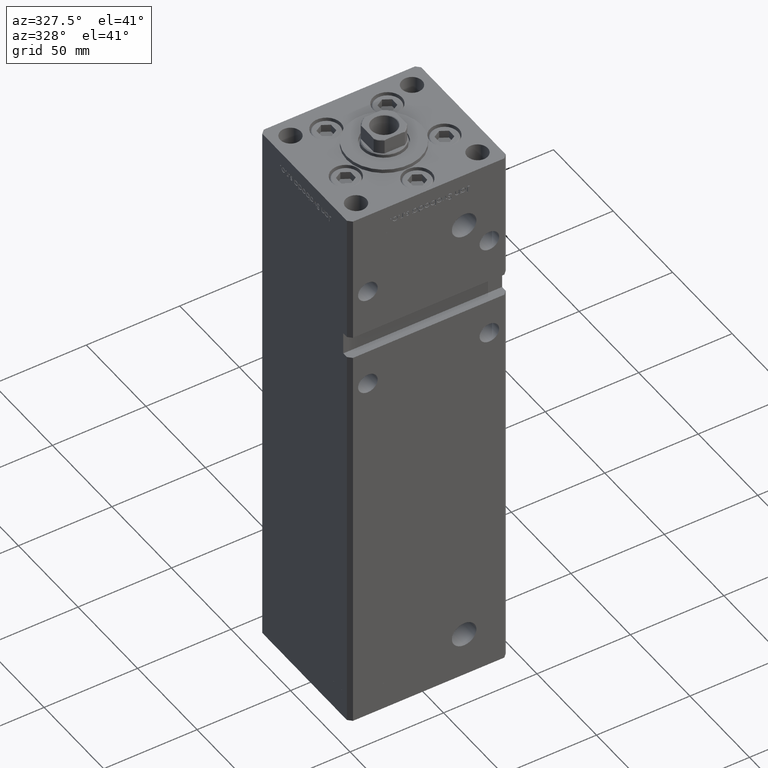
[diagram: clean part render]
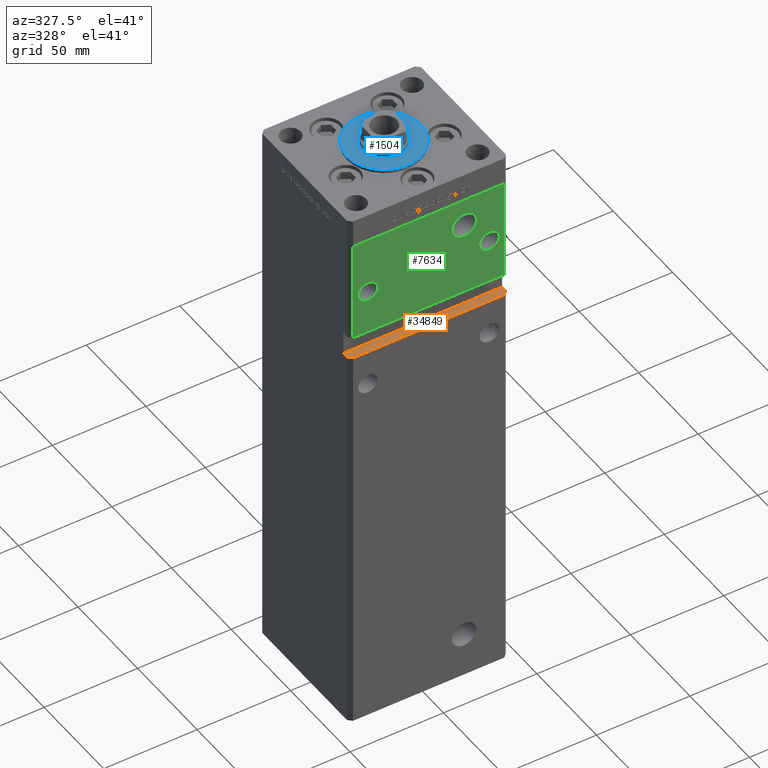
[diagram: same view with three faces highlighted in distinct colors, each labeled with its STEP entity id]
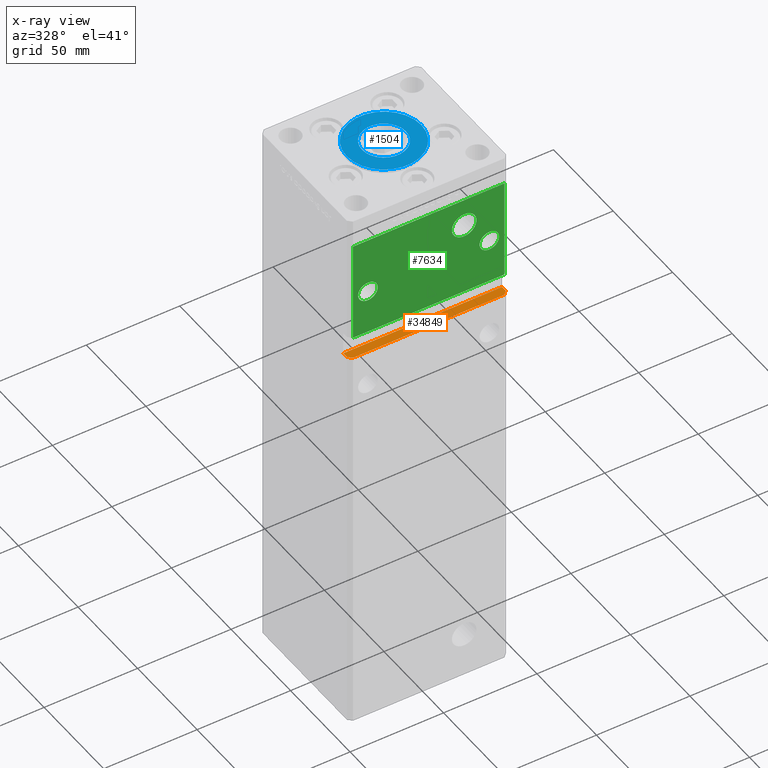
[diagram: x-ray of the same camera — body ghosted, the three highlighted faces saturated]
A machine part, auxiliary view with three faces highlighted in distinct colors.
The next image is the same camera in x-ray (body ghosted, the three faces saturated) — at least one of them is partly hidden behind the body in this view.
Their STEP definitions:

[orange] entity #34849 — the highlighted planar face has unit normal (0, 0, -1).
#926 = CARTESIAN_POINT ( 'NONE',  ( 42.49999999999998579, -35.50000000000000711, 202.0000000000000000 ) ) ;
#1380 = DIRECTION ( 'NONE',  ( -0.000000000000000000, -1.000000000000000000, -0.000000000000000000 ) ) ;
#3880 = ORIENTED_EDGE ( 'NONE', *, *, #21562, .F. ) ;
#4141 = EDGE_LOOP ( 'NONE', ( #8600, #23711, #33352, #3880, #32587, #21887 ) ) ;
#4635 = CARTESIAN_POINT ( 'NONE',  ( -42.49999999999998579, -35.49999999999996447, 202.0000000000000000 ) ) ;
#4732 = LINE ( 'NONE', #24419, #22823 ) ;
#5182 = VERTEX_POINT ( 'NONE', #27629 ) ;
#8208 = EDGE_CURVE ( 'NONE', #19357, #16774, #28637, .T. ) ;
#8600 = ORIENTED_EDGE ( 'NONE', *, *, #34362, .T. ) ;
#9714 = CARTESIAN_POINT ( 'NONE',  ( 42.49999999999998579, -32.50000000000000711, 202.0000000000000000 ) ) ;
#12212 = VECTOR ( 'NONE', #51052, 1000.000000000000114 ) ;
#12307 = DIRECTION ( 'NONE',  ( -0.000000000000000000, -1.000000000000000000, -0.000000000000000000 ) ) ;
#12737 = DIRECTION ( 'NONE',  ( 1.000000000000000000, 0.000000000000000000, 0.000000000000000000 ) ) ;
#15800 = FACE_OUTER_BOUND ( 'NONE', #4141, .T. ) ;
#16774 = VERTEX_POINT ( 'NONE', #4635 ) ;
#18238 = VECTOR ( 'NONE', #32659, 1000.000000000000114 ) ;
#19357 = VERTEX_POINT ( 'NONE', #45460 ) ;
#19573 = CARTESIAN_POINT ( 'NONE',  ( -42.49999999999998579, -32.50000000000000711, 202.0000000000000000 ) ) ;
#20811 = CARTESIAN_POINT ( 'NONE',  ( -42.49999999999998579, -35.50000000000000711, 202.0000000000000000 ) ) ;
#21153 = DIRECTION ( 'NONE',  ( 1.000000000000000000, 0.000000000000000000, 0.000000000000000000 ) ) ;
#21562 = EDGE_CURVE ( 'NONE', #48783, #5182, #4732, .T. ) ;
#21887 = ORIENTED_EDGE ( 'NONE', *, *, #8208, .F. ) ;
#22069 = CARTESIAN_POINT ( 'NONE',  ( -42.49999999999998579, -32.50000000000000711, 202.0000000000000000 ) ) ;
#22287 = LINE ( 'NONE', #22825, #12212 ) ;
#22823 = VECTOR ( 'NONE', #21153, 1000.000000000000000 ) ;
#22825 = CARTESIAN_POINT ( 'NONE',  ( 42.49999999999998579, -35.50000000000000711, 202.0000000000000000 ) ) ;
#23711 = ORIENTED_EDGE ( 'NONE', *, *, #52981, .T. ) ;
#23892 = PLANE ( 'NONE',  #47112 ) ;
#24419 = CARTESIAN_POINT ( 'NONE',  ( -42.49999999999998579, -32.50000000000000711, 202.0000000000000000 ) ) ;
#24712 = LINE ( 'NONE', #25509, #39266 ) ;
#24960 = EDGE_CURVE ( 'NONE', #48783, #16774, #24712, .T. ) ;
#25509 = CARTESIAN_POINT ( 'NONE',  ( -42.49999999999998579, -32.50000000000000711, 202.0000000000000000 ) ) ;
#26408 = EDGE_CURVE ( 'NONE', #5182, #48309, #46329, .T. ) ;
#27629 = CARTESIAN_POINT ( 'NONE',  ( 42.49999999999998579, -32.50000000000000000, 202.0000000000000000 ) ) ;
#28637 = LINE ( 'NONE', #20811, #18238 ) ;
#32587 = ORIENTED_EDGE ( 'NONE', *, *, #24960, .T. ) ;
#32659 = DIRECTION ( 'NONE',  ( -0.7071067811865474617, 0.7071067811865474617, 0.000000000000000000 ) ) ;
#33209 = LINE ( 'NONE', #38046, #49655 ) ;
#33352 = ORIENTED_EDGE ( 'NONE', *, *, #26408, .F. ) ;
#34362 = EDGE_CURVE ( 'NONE', #19357, #51643, #33209, .T. ) ;
#34849 = ADVANCED_FACE ( 'NONE', ( #15800 ), #23892, .F. ) ;
#36522 = DIRECTION ( 'NONE',  ( -1.000000000000000000, 0.000000000000000000, -0.000000000000000000 ) ) ;
#38046 = CARTESIAN_POINT ( 'NONE',  ( -42.49999999999998579, -37.50000000000000711, 202.0000000000000000 ) ) ;
#39266 = VECTOR ( 'NONE', #12307, 1000.000000000000000 ) ;
#40129 = VECTOR ( 'NONE', #1380, 1000.000000000000000 ) ;
#45393 = DIRECTION ( 'NONE',  ( 0.000000000000000000, 0.000000000000000000, -1.000000000000000000 ) ) ;
#45460 = CARTESIAN_POINT ( 'NONE',  ( -40.49999999999998579, -37.50000000000000711, 202.0000000000000000 ) ) ;
#46329 = LINE ( 'NONE', #9714, #40129 ) ;
#47112 = AXIS2_PLACEMENT_3D ( 'NONE', #19573, #45393, #36522 ) ;
#48309 = VERTEX_POINT ( 'NONE', #926 ) ;
#48783 = VERTEX_POINT ( 'NONE', #22069 ) ;
#49655 = VECTOR ( 'NONE', #12737, 1000.000000000000000 ) ;
#50607 = CARTESIAN_POINT ( 'NONE',  ( 40.49999999999998579, -37.50000000000000711, 202.0000000000000000 ) ) ;
#51052 = DIRECTION ( 'NONE',  ( 0.7071067811865474617, 0.7071067811865474617, 0.000000000000000000 ) ) ;
#51643 = VERTEX_POINT ( 'NONE', #50607 ) ;
#52981 = EDGE_CURVE ( 'NONE', #51643, #48309, #22287, .T. ) ;

[blue] entity #1504 — the highlighted planar face has unit normal (0, 0, 1).
#1504 = ADVANCED_FACE ( 'NONE', ( #4566, #12899 ), #24522, .T. ) ;
#4202 = CARTESIAN_POINT ( 'NONE',  ( 20.00000000000000000, -4.489600305612522259E-15, 2.000000000000000000 ) ) ;
#4346 = ORIENTED_EDGE ( 'NONE', *, *, #9269, .T. ) ;
#4566 = FACE_BOUND ( 'NONE', #24607, .T. ) ;
#5576 = CIRCLE ( 'NONE', #17611, 20.00000000000000000 ) ;
#6492 = CARTESIAN_POINT ( 'NONE',  ( -20.00000000000000000, -6.938893903907228378E-15, 2.000000000000000000 ) ) ;
#8595 = DIRECTION ( 'NONE',  ( 1.000000000000000000, 0.000000000000000000, -0.000000000000000000 ) ) ;
#8932 = DIRECTION ( 'NONE',  ( 0.000000000000000000, 0.000000000000000000, 1.000000000000000000 ) ) ;
#9122 = DIRECTION ( 'NONE',  ( 0.000000000000000000, 0.000000000000000000, 1.000000000000000000 ) ) ;
#9269 = EDGE_CURVE ( 'NONE', #52491, #34013, #52626, .T. ) ;
#10114 = EDGE_CURVE ( 'NONE', #46249, #24942, #26014, .T. ) ;
#12433 = DIRECTION ( 'NONE',  ( 1.000000000000000000, 0.000000000000000000, 0.000000000000000000 ) ) ;
#12899 = FACE_OUTER_BOUND ( 'NONE', #18451, .T. ) ;
#13501 = DIRECTION ( 'NONE',  ( 1.000000000000000000, 0.000000000000000000, 0.000000000000000000 ) ) ;
#16476 = DIRECTION ( 'NONE',  ( 0.000000000000000000, 0.000000000000000000, 1.000000000000000000 ) ) ;
#17611 = AXIS2_PLACEMENT_3D ( 'NONE', #19184, #23497, #51995 ) ;
#18451 = EDGE_LOOP ( 'NONE', ( #4346, #35917 ) ) ;
#19184 = CARTESIAN_POINT ( 'NONE',  ( 0.000000000000000000, -6.938893903907228378E-15, 2.000000000000000000 ) ) ;
#21986 = EDGE_CURVE ( 'NONE', #34013, #52491, #5576, .T. ) ;
#23350 = CIRCLE ( 'NONE', #30221, 11.75000000000000178 ) ;
#23497 = DIRECTION ( 'NONE',  ( 0.000000000000000000, 0.000000000000000000, 1.000000000000000000 ) ) ;
#24522 = PLANE ( 'NONE',  #47280 ) ;
#24607 = EDGE_LOOP ( 'NONE', ( #42088, #29290 ) ) ;
#24843 = CARTESIAN_POINT ( 'NONE',  ( 0.000000000000000000, -6.938893903907228378E-15, 2.000000000000000000 ) ) ;
#24942 = VERTEX_POINT ( 'NONE', #25250 ) ;
#25250 = CARTESIAN_POINT ( 'NONE',  ( -11.75000000000000178, -5.499933914909088809E-15, 2.000000000000000000 ) ) ;
#26014 = CIRCLE ( 'NONE', #46622, 11.75000000000000178 ) ;
#26922 = CARTESIAN_POINT ( 'NONE',  ( 11.75000000000000178, -6.938893903907228378E-15, 2.000000000000000000 ) ) ;
#28587 = AXIS2_PLACEMENT_3D ( 'NONE', #24843, #16476, #12433 ) ;
#29290 = ORIENTED_EDGE ( 'NONE', *, *, #50230, .F. ) ;
#30221 = AXIS2_PLACEMENT_3D ( 'NONE', #43765, #42962, #31127 ) ;
#31127 = DIRECTION ( 'NONE',  ( 1.000000000000000000, 0.000000000000000000, 0.000000000000000000 ) ) ;
#34013 = VERTEX_POINT ( 'NONE', #4202 ) ;
#35917 = ORIENTED_EDGE ( 'NONE', *, *, #21986, .T. ) ;
#37411 = CARTESIAN_POINT ( 'NONE',  ( 0.000000000000000000, -6.938893903907228378E-15, 2.000000000000000000 ) ) ;
#42051 = CARTESIAN_POINT ( 'NONE',  ( 0.000000000000000000, -6.938893903907228378E-15, 2.000000000000000000 ) ) ;
#42088 = ORIENTED_EDGE ( 'NONE', *, *, #10114, .F. ) ;
#42962 = DIRECTION ( 'NONE',  ( 0.000000000000000000, 0.000000000000000000, 1.000000000000000000 ) ) ;
#43765 = CARTESIAN_POINT ( 'NONE',  ( 0.000000000000000000, -6.938893903907228378E-15, 2.000000000000000000 ) ) ;
#46249 = VERTEX_POINT ( 'NONE', #26922 ) ;
#46622 = AXIS2_PLACEMENT_3D ( 'NONE', #42051, #8932, #13501 ) ;
#47280 = AXIS2_PLACEMENT_3D ( 'NONE', #37411, #9122, #8595 ) ;
#50230 = EDGE_CURVE ( 'NONE', #24942, #46249, #23350, .T. ) ;
#51995 = DIRECTION ( 'NONE',  ( 1.000000000000000000, 0.000000000000000000, 0.000000000000000000 ) ) ;
#52491 = VERTEX_POINT ( 'NONE', #6492 ) ;
#52626 = CIRCLE ( 'NONE', #28587, 20.00000000000000000 ) ;

[green] entity #7634 — the highlighted planar face has unit normal (0, 1, 0).
#1191 = CIRCLE ( 'NONE', #18926, 5.250000000000004441 ) ;
#1240 = AXIS2_PLACEMENT_3D ( 'NONE', #26567, #30597, #50476 ) ;
#1566 = CARTESIAN_POINT ( 'NONE',  ( 18.99999999999995737, -37.50000000000000711, 253.5000000000000000 ) ) ;
#2964 = CARTESIAN_POINT ( 'NONE',  ( 40.49999999999998579, -37.50000000000000711, 268.5000000000000000 ) ) ;
#3504 = CARTESIAN_POINT ( 'NONE',  ( -32.50000000000000000, -37.50000000000000711, 232.7500000000000000 ) ) ;
#3596 = ORIENTED_EDGE ( 'NONE', *, *, #48210, .F. ) ;
#3865 = EDGE_CURVE ( 'NONE', #14581, #33739, #11034, .T. ) ;
#4241 = LINE ( 'NONE', #40345, #5269 ) ;
#4302 = DIRECTION ( 'NONE',  ( 0.000000000000000000, -0.000000000000000000, 1.000000000000000000 ) ) ;
#5108 = CARTESIAN_POINT ( 'NONE',  ( -40.49999999999998579, -37.50000000000000711, 214.0000000000000284 ) ) ;
#5269 = VECTOR ( 'NONE', #28759, 1000.000000000000000 ) ;
#5746 = VERTEX_POINT ( 'NONE', #28547 ) ;
#6514 = EDGE_CURVE ( 'NONE', #30380, #25630, #41412, .T. ) ;
#7129 = CIRCLE ( 'NONE', #14004, 5.250000000000004441 ) ;
#7367 = DIRECTION ( 'NONE',  ( 0.000000000000000000, 1.000000000000000000, 0.000000000000000000 ) ) ;
#7540 = FACE_OUTER_BOUND ( 'NONE', #7983, .T. ) ;
#7634 = ADVANCED_FACE ( 'NONE', ( #15632, #52992, #7540, #28291 ), #36081, .F. ) ;
#7948 = LINE ( 'NONE', #24393, #18225 ) ;
#7983 = EDGE_LOOP ( 'NONE', ( #12686, #25911, #19194, #3596 ) ) ;
#9342 = DIRECTION ( 'NONE',  ( 0.000000000000000000, 0.000000000000000000, 1.000000000000000000 ) ) ;
#9425 = EDGE_LOOP ( 'NONE', ( #25531, #16035 ) ) ;
#10599 = DIRECTION ( 'NONE',  ( -0.000000000000000000, 1.000000000000000000, -0.000000000000000000 ) ) ;
#11034 = LINE ( 'NONE', #2964, #16386 ) ;
#11304 = AXIS2_PLACEMENT_3D ( 'NONE', #11579, #32059, #4302 ) ;
#11507 = EDGE_CURVE ( 'NONE', #18633, #18303, #7129, .T. ) ;
#11579 = CARTESIAN_POINT ( 'NONE',  ( -40.49999999999998579, -37.50000000000000711, 268.5000000000000000 ) ) ;
#12686 = ORIENTED_EDGE ( 'NONE', *, *, #19758, .T. ) ;
#13388 = CARTESIAN_POINT ( 'NONE',  ( 32.50000000000000000, -37.50000000000000711, 238.0000000000000284 ) ) ;
#13684 = CIRCLE ( 'NONE', #47242, 6.580000000000002736 ) ;
#14004 = AXIS2_PLACEMENT_3D ( 'NONE', #13388, #37364, #9342 ) ;
#14566 = ORIENTED_EDGE ( 'NONE', *, *, #14820, .T. ) ;
#14581 = VERTEX_POINT ( 'NONE', #50946 ) ;
#14820 = EDGE_CURVE ( 'NONE', #26416, #26697, #42491, .T. ) ;
#14929 = DIRECTION ( 'NONE',  ( -0.000000000000000000, -0.000000000000000000, -1.000000000000000000 ) ) ;
#15032 = ORIENTED_EDGE ( 'NONE', *, *, #42573, .T. ) ;
#15408 = EDGE_CURVE ( 'NONE', #18303, #18633, #17579, .T. ) ;
#15632 = FACE_BOUND ( 'NONE', #21216, .T. ) ;
#15793 = CARTESIAN_POINT ( 'NONE',  ( 32.50000000000000000, -37.50000000000000711, 232.7500000000000000 ) ) ;
#15819 = CARTESIAN_POINT ( 'NONE',  ( 18.99999999999995737, -37.50000000000000711, 246.9199999999999875 ) ) ;
#16035 = ORIENTED_EDGE ( 'NONE', *, *, #6514, .T. ) ;
#16386 = VECTOR ( 'NONE', #28001, 1000.000000000000000 ) ;
#17270 = CARTESIAN_POINT ( 'NONE',  ( -32.50000000000000000, -37.50000000000000711, 243.2500000000000284 ) ) ;
#17579 = CIRCLE ( 'NONE', #1240, 5.250000000000004441 ) ;
#18225 = VECTOR ( 'NONE', #40812, 1000.000000000000000 ) ;
#18303 = VERTEX_POINT ( 'NONE', #24480 ) ;
#18633 = VERTEX_POINT ( 'NONE', #15793 ) ;
#18926 = AXIS2_PLACEMENT_3D ( 'NONE', #28644, #7367, #49331 ) ;
#19126 = DIRECTION ( 'NONE',  ( 0.000000000000000000, 0.000000000000000000, 1.000000000000000000 ) ) ;
#19194 = ORIENTED_EDGE ( 'NONE', *, *, #3865, .F. ) ;
#19758 = EDGE_CURVE ( 'NONE', #5746, #46955, #28459, .T. ) ;
#21216 = EDGE_LOOP ( 'NONE', ( #45367, #45479 ) ) ;
#22039 = DIRECTION ( 'NONE',  ( -0.000000000000000000, 1.000000000000000000, -0.000000000000000000 ) ) ;
#24393 = CARTESIAN_POINT ( 'NONE',  ( -40.49999999999998579, -37.50000000000000711, 268.5000000000000000 ) ) ;
#24480 = CARTESIAN_POINT ( 'NONE',  ( 32.50000000000000000, -37.50000000000000711, 243.2500000000000284 ) ) ;
#25531 = ORIENTED_EDGE ( 'NONE', *, *, #40641, .T. ) ;
#25630 = VERTEX_POINT ( 'NONE', #15819 ) ;
#25911 = ORIENTED_EDGE ( 'NONE', *, *, #46370, .F. ) ;
#26416 = VERTEX_POINT ( 'NONE', #17270 ) ;
#26567 = CARTESIAN_POINT ( 'NONE',  ( 32.50000000000000000, -37.50000000000000711, 238.0000000000000284 ) ) ;
#26697 = VERTEX_POINT ( 'NONE', #3504 ) ;
#27224 = DIRECTION ( 'NONE',  ( 0.000000000000000000, 1.000000000000000000, 0.000000000000000000 ) ) ;
#28001 = DIRECTION ( 'NONE',  ( -0.000000000000000000, -0.000000000000000000, -1.000000000000000000 ) ) ;
#28291 = FACE_BOUND ( 'NONE', #9425, .T. ) ;
#28459 = LINE ( 'NONE', #44866, #47658 ) ;
#28547 = CARTESIAN_POINT ( 'NONE',  ( -40.49999999999998579, -37.50000000000000711, 268.5000000000000000 ) ) ;
#28644 = CARTESIAN_POINT ( 'NONE',  ( -32.50000000000000000, -37.50000000000000711, 238.0000000000000284 ) ) ;
#28759 = DIRECTION ( 'NONE',  ( -1.000000000000000000, -0.000000000000000000, -0.000000000000000000 ) ) ;
#30380 = VERTEX_POINT ( 'NONE', #50418 ) ;
#30597 = DIRECTION ( 'NONE',  ( 0.000000000000000000, 1.000000000000000000, 0.000000000000000000 ) ) ;
#32059 = DIRECTION ( 'NONE',  ( 0.000000000000000000, 1.000000000000000000, 0.000000000000000000 ) ) ;
#32900 = EDGE_LOOP ( 'NONE', ( #14566, #15032 ) ) ;
#33739 = VERTEX_POINT ( 'NONE', #49718 ) ;
#34842 = CARTESIAN_POINT ( 'NONE',  ( 18.99999999999995737, -37.50000000000000711, 253.5000000000000000 ) ) ;
#36081 = PLANE ( 'NONE',  #11304 ) ;
#37364 = DIRECTION ( 'NONE',  ( 0.000000000000000000, 1.000000000000000000, 0.000000000000000000 ) ) ;
#38519 = CARTESIAN_POINT ( 'NONE',  ( -32.50000000000000000, -37.50000000000000711, 238.0000000000000284 ) ) ;
#40345 = CARTESIAN_POINT ( 'NONE',  ( -42.49999999999998579, -37.50000000000000711, 214.0000000000000284 ) ) ;
#40641 = EDGE_CURVE ( 'NONE', #25630, #30380, #13684, .T. ) ;
#40812 = DIRECTION ( 'NONE',  ( 1.000000000000000000, 0.000000000000000000, 0.000000000000000000 ) ) ;
#41412 = CIRCLE ( 'NONE', #49943, 6.580000000000002736 ) ;
#42491 = CIRCLE ( 'NONE', #50211, 5.250000000000004441 ) ;
#42573 = EDGE_CURVE ( 'NONE', #26697, #26416, #1191, .T. ) ;
#44866 = CARTESIAN_POINT ( 'NONE',  ( -40.49999999999998579, -37.50000000000000711, 268.5000000000000000 ) ) ;
#45367 = ORIENTED_EDGE ( 'NONE', *, *, #15408, .T. ) ;
#45479 = ORIENTED_EDGE ( 'NONE', *, *, #11507, .T. ) ;
#46370 = EDGE_CURVE ( 'NONE', #33739, #46955, #4241, .T. ) ;
#46511 = DIRECTION ( 'NONE',  ( 0.000000000000000000, 0.000000000000000000, -1.000000000000000000 ) ) ;
#46955 = VERTEX_POINT ( 'NONE', #5108 ) ;
#47242 = AXIS2_PLACEMENT_3D ( 'NONE', #1566, #22039, #46511 ) ;
#47658 = VECTOR ( 'NONE', #14929, 1000.000000000000000 ) ;
#47735 = DIRECTION ( 'NONE',  ( 0.000000000000000000, 0.000000000000000000, -1.000000000000000000 ) ) ;
#48210 = EDGE_CURVE ( 'NONE', #5746, #14581, #7948, .T. ) ;
#49331 = DIRECTION ( 'NONE',  ( 0.000000000000000000, 0.000000000000000000, 1.000000000000000000 ) ) ;
#49718 = CARTESIAN_POINT ( 'NONE',  ( 40.49999999999997868, -37.50000000000000711, 214.0000000000000284 ) ) ;
#49943 = AXIS2_PLACEMENT_3D ( 'NONE', #34842, #10599, #47735 ) ;
#50211 = AXIS2_PLACEMENT_3D ( 'NONE', #38519, #27224, #19126 ) ;
#50418 = CARTESIAN_POINT ( 'NONE',  ( 18.99999999999995737, -37.50000000000000711, 260.0799999999999841 ) ) ;
#50476 = DIRECTION ( 'NONE',  ( 0.000000000000000000, 0.000000000000000000, 1.000000000000000000 ) ) ;
#50946 = CARTESIAN_POINT ( 'NONE',  ( 40.49999999999998579, -37.50000000000000711, 268.5000000000000000 ) ) ;
#52992 = FACE_BOUND ( 'NONE', #32900, .T. ) ;